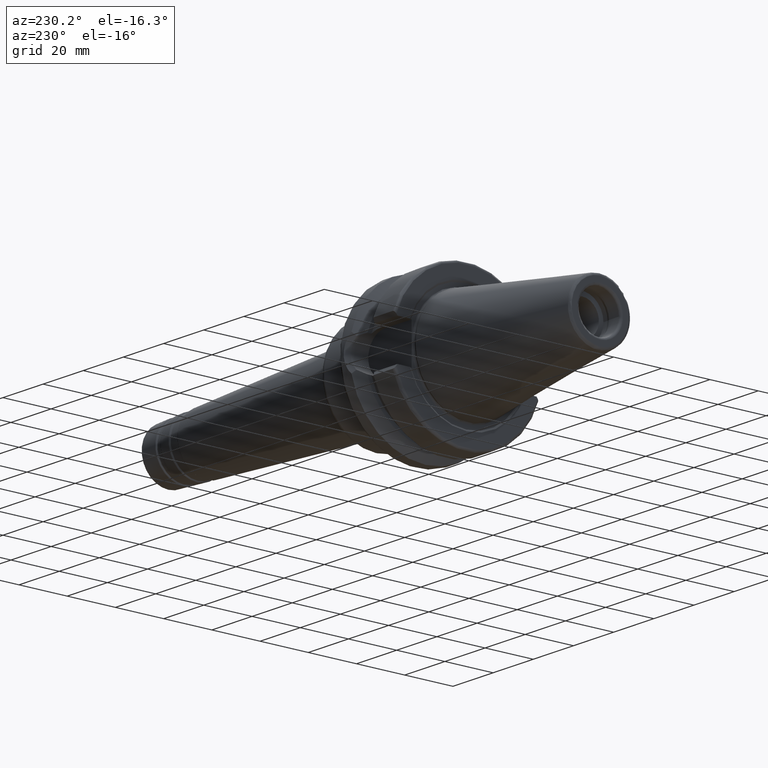
[diagram: clean part render]
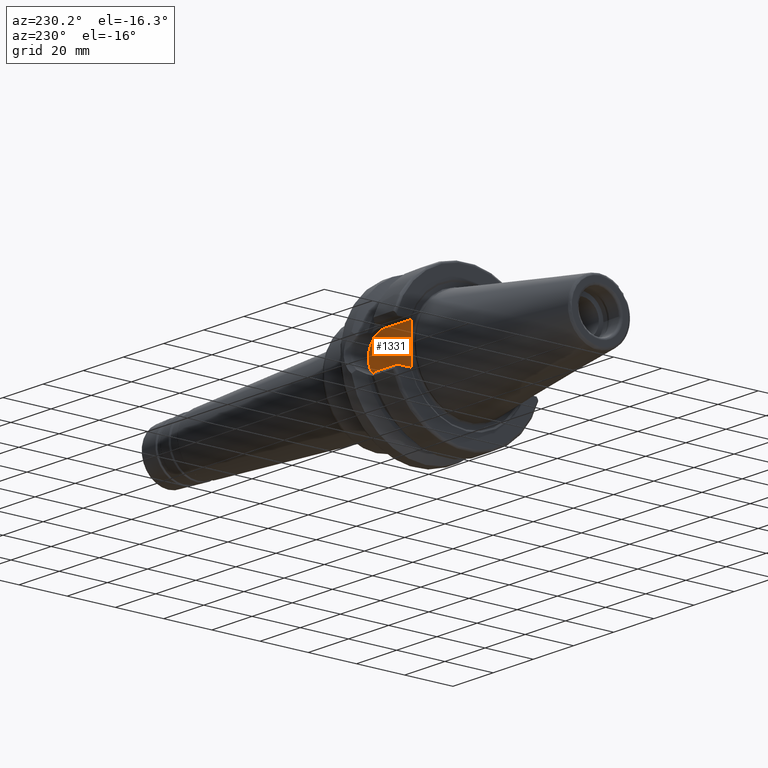
[diagram: same view with one face highlighted and labeled with its STEP entity id]
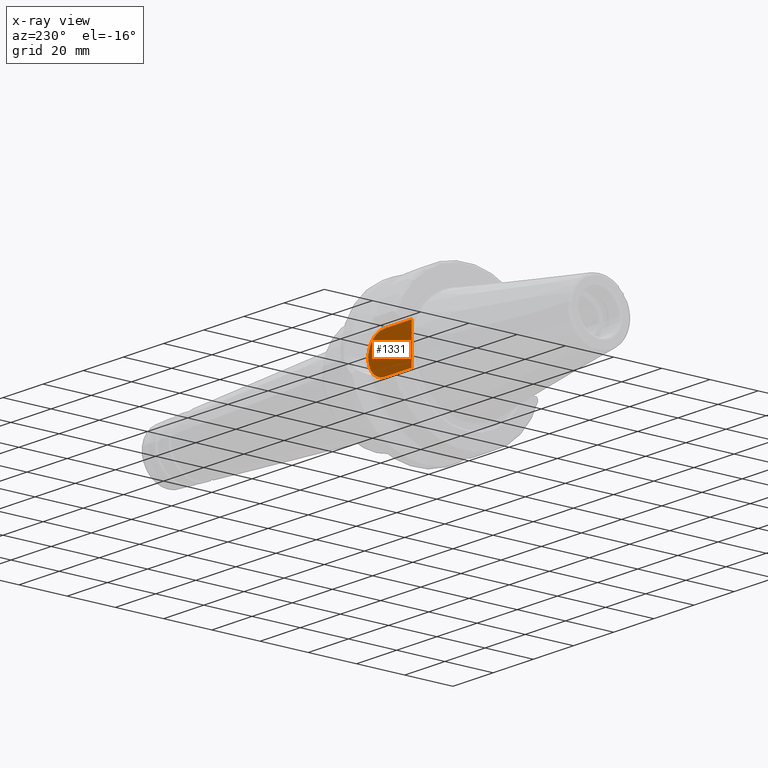
[diagram: x-ray of the same camera — body ghosted, the highlighted face saturated]
A machine part, auxiliary view. The second image highlights one B-rep face of the part: STEP entity #1331.
The next image is the same camera in x-ray: the body ghosted, the highlighted face saturated — about 0% of this face is hidden behind the body in this view.
In plain terms, the highlighted planar face has unit normal (0, 1, 0).
Its self-contained STEP definition (entity closure, byte-faithful):
#92=PLANE('',#1510);
#131=LINE('',#2428,#202);
#154=LINE('',#2517,#225);
#159=LINE('',#2564,#230);
#160=LINE('',#2567,#231);
#202=VECTOR('',#1797,10.);
#225=VECTOR('',#1850,10.);
#230=VECTOR('',#1889,10.);
#231=VECTOR('',#1894,10.);
#327=FACE_OUTER_BOUND('',#414,.T.);
#414=EDGE_LOOP('',(#1163,#1164,#1165,#1166,#1167));
#508=CIRCLE('',#1511,8.05);
#603=VERTEX_POINT('',#2425);
#604=VERTEX_POINT('',#2427);
#627=VERTEX_POINT('',#2514);
#628=VERTEX_POINT('',#2516);
#635=VERTEX_POINT('',#2562);
#767=EDGE_CURVE('',#604,#603,#131,.T.);
#802=EDGE_CURVE('',#627,#628,#154,.T.);
#819=EDGE_CURVE('',#627,#635,#159,.T.);
#820=EDGE_CURVE('',#635,#604,#508,.T.);
#821=EDGE_CURVE('',#628,#603,#160,.T.);
#1163=ORIENTED_EDGE('',*,*,#802,.F.);
#1164=ORIENTED_EDGE('',*,*,#819,.T.);
#1165=ORIENTED_EDGE('',*,*,#820,.T.);
#1166=ORIENTED_EDGE('',*,*,#767,.T.);
#1167=ORIENTED_EDGE('',*,*,#821,.F.);
#1331=ADVANCED_FACE('',(#327),#92,.T.);
#1510=AXIS2_PLACEMENT_3D('',#2565,#1890,#1891);
#1511=AXIS2_PLACEMENT_3D('',#2566,#1892,#1893);
#1797=DIRECTION('',(-1.,0.,7.9585879901445E-17));
#1850=DIRECTION('',(0.,0.,-1.));
#1889=DIRECTION('',(1.,0.,7.95858799014451E-17));
#1890=DIRECTION('center_axis',(0.,1.,0.));
#1891=DIRECTION('ref_axis',(0.,0.,1.));
#1892=DIRECTION('center_axis',(0.,1.,0.));
#1893=DIRECTION('ref_axis',(0.,0.,1.));
#1894=DIRECTION('',(0.,0.,-1.));
#2425=CARTESIAN_POINT('',(1.4,22.6,-8.05));
#2427=CARTESIAN_POINT('',(14.95,22.6,-8.05));
#2428=CARTESIAN_POINT('',(14.95,22.6,-8.05));
#2514=CARTESIAN_POINT('',(1.4,22.6,8.05));
#2516=CARTESIAN_POINT('',(1.4,22.6,0.));
#2517=CARTESIAN_POINT('',(1.4,22.6,2.77555756156289E-16));
#2562=CARTESIAN_POINT('',(14.95,22.6,8.05));
#2564=CARTESIAN_POINT('',(1.00000000000002,22.6,8.05));
#2565=CARTESIAN_POINT('Origin',(12.,22.6,5.55111512312578E-16));
#2566=CARTESIAN_POINT('Origin',(14.95,22.6,0.));
#2567=CARTESIAN_POINT('',(1.4,22.6,2.77555756156289E-16));